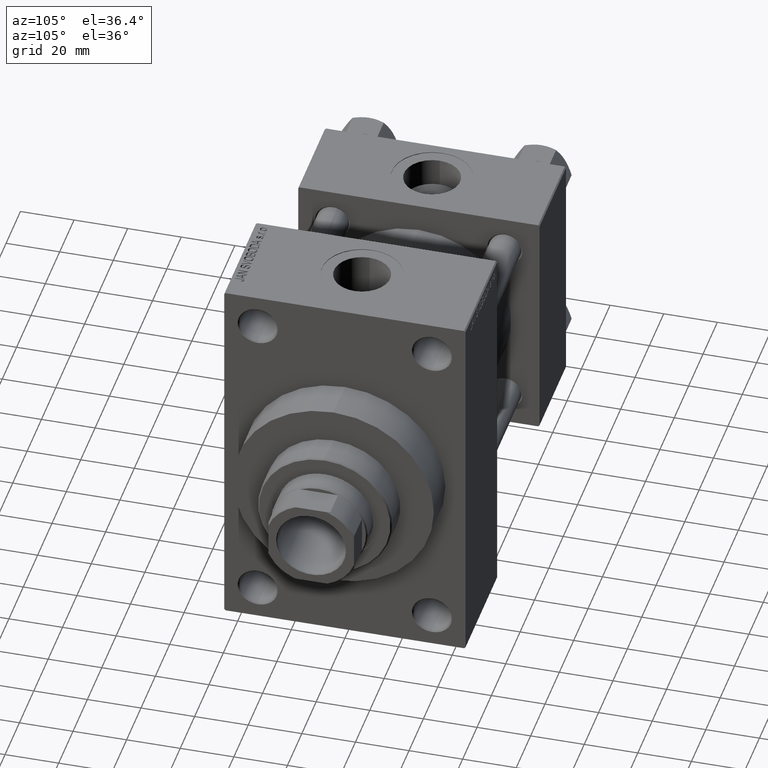
[diagram: clean part render]
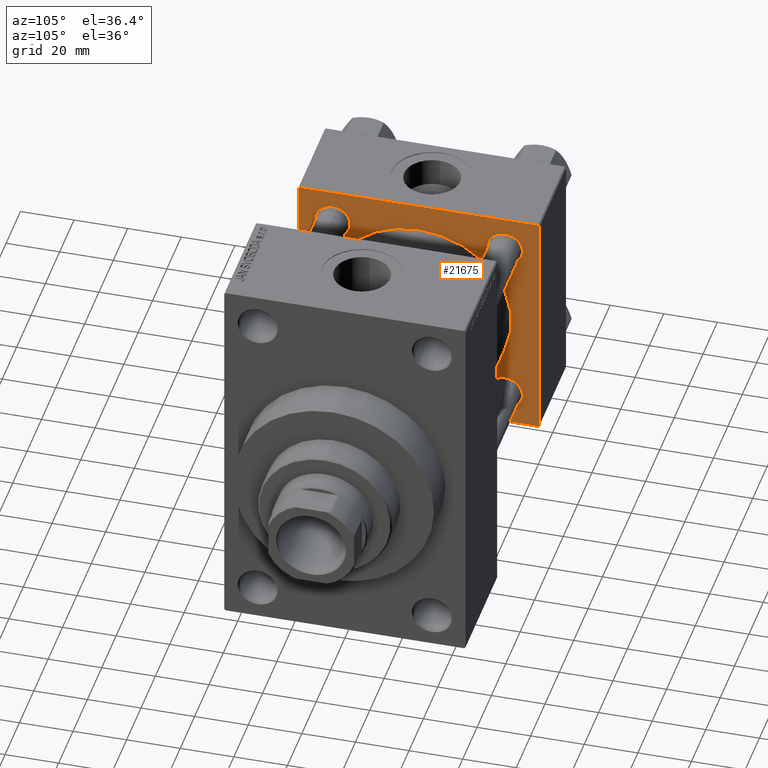
[diagram: same view with one face highlighted and labeled with its STEP entity id]
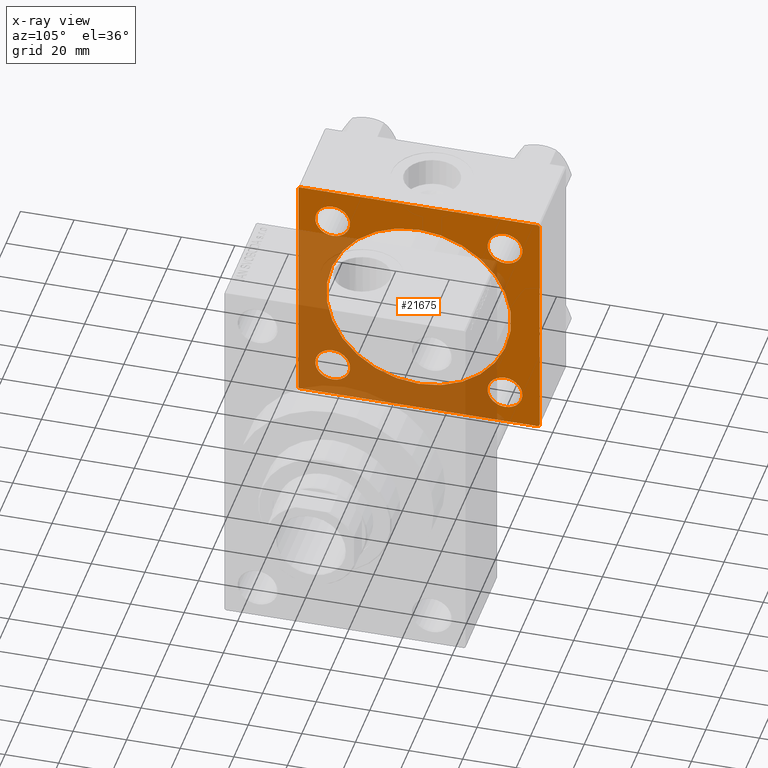
[diagram: x-ray of the same camera — body ghosted, the highlighted face saturated]
A machine part, auxiliary view. The second image highlights one B-rep face of the part: STEP entity #21675.
The next image is the same camera in x-ray: the body ghosted, the highlighted face saturated — about 46% of this face is hidden behind the body in this view.
In plain terms, the highlighted planar face has unit normal (-1, 0, 0).
Its self-contained STEP definition (entity closure, byte-faithful):
#77 = EDGE_CURVE ( 'NONE', #12973, #29130, #31905, .T. ) ;
#451 = EDGE_LOOP ( 'NONE', ( #43385, #15809 ) ) ;
#627 = LINE ( 'NONE', #18536, #29840 ) ;
#1309 = CARTESIAN_POINT ( 'NONE',  ( 37.00000000000000000, 32.14999999999999147, 25.64999999999997016 ) ) ;
#2345 = CARTESIAN_POINT ( 'NONE',  ( 37.00000000000000000, -2.602085213965210642E-15, 0.000000000000000000 ) ) ;
#2824 = CIRCLE ( 'NONE', #5840, 6.500000000000005329 ) ;
#3007 = CARTESIAN_POINT ( 'NONE',  ( 37.00000000000000000, 44.99999999999998579, 45.00000000000001421 ) ) ;
#3018 = VECTOR ( 'NONE', #22560, 1000.000000000000114 ) ;
#3119 = VERTEX_POINT ( 'NONE', #38894 ) ;
#3249 = CARTESIAN_POINT ( 'NONE',  ( 37.00000000000000000, -32.14999999999997726, -38.65000000000001990 ) ) ;
#4550 = VERTEX_POINT ( 'NONE', #30850 ) ;
#4587 = DIRECTION ( 'NONE',  ( 0.000000000000000000, -0.7071067811865474617, 0.7071067811865474617 ) ) ;
#4747 = AXIS2_PLACEMENT_3D ( 'NONE', #12404, #26971, #5233 ) ;
#5161 = VECTOR ( 'NONE', #14163, 1000.000000000000000 ) ;
#5192 = CIRCLE ( 'NONE', #5941, 6.500000000000005329 ) ;
#5233 = DIRECTION ( 'NONE',  ( 0.000000000000000000, 0.000000000000000000, 1.000000000000000000 ) ) ;
#5247 = EDGE_CURVE ( 'NONE', #34964, #16035, #20838, .T. ) ;
#5421 = AXIS2_PLACEMENT_3D ( 'NONE', #25757, #40328, #19070 ) ;
#5831 = CARTESIAN_POINT ( 'NONE',  ( 37.00000000000000000, -45.00000000000000711, 44.49999999999997158 ) ) ;
#5840 = AXIS2_PLACEMENT_3D ( 'NONE', #8627, #36874, #9096 ) ;
#5941 = AXIS2_PLACEMENT_3D ( 'NONE', #11647, #18825, #44614 ) ;
#6011 = DIRECTION ( 'NONE',  ( 0.000000000000000000, -1.000000000000000000, -1.541976423090495387E-16 ) ) ;
#6088 = CARTESIAN_POINT ( 'NONE',  ( 37.00000000000000000, 0.000000000000000000, 0.000000000000000000 ) ) ;
#6346 = CARTESIAN_POINT ( 'NONE',  ( 37.00000000000000000, -32.14999999999997726, 25.65000000000000568 ) ) ;
#6418 = EDGE_CURVE ( 'NONE', #30768, #19067, #42287, .T. ) ;
#6555 = DIRECTION ( 'NONE',  ( -1.000000000000000000, 0.000000000000000000, -0.000000000000000000 ) ) ;
#6769 = EDGE_CURVE ( 'NONE', #19089, #8957, #25457, .T. ) ;
#6790 = FACE_BOUND ( 'NONE', #16321, .T. ) ;
#7021 = LINE ( 'NONE', #11558, #3018 ) ;
#8627 = CARTESIAN_POINT ( 'NONE',  ( 37.00000000000000000, -32.14999999999997726, -32.15000000000001279 ) ) ;
#8880 = CARTESIAN_POINT ( 'NONE',  ( 37.00000000000000000, 44.49999999999998579, 45.00000000000001421 ) ) ;
#8957 = VERTEX_POINT ( 'NONE', #39503 ) ;
#9096 = DIRECTION ( 'NONE',  ( 0.000000000000000000, 0.000000000000000000, 1.000000000000000000 ) ) ;
#9487 = ORIENTED_EDGE ( 'NONE', *, *, #23410, .T. ) ;
#9906 = PLANE ( 'NONE',  #15775 ) ;
#10047 = DIRECTION ( 'NONE',  ( 0.000000000000000000, 0.000000000000000000, 1.000000000000000000 ) ) ;
#10063 = LINE ( 'NONE', #13418, #37145 ) ;
#10262 = CARTESIAN_POINT ( 'NONE',  ( 37.00000000000000000, -32.14999999999997726, 32.15000000000001279 ) ) ;
#10373 = DIRECTION ( 'NONE',  ( -0.000000000000000000, 0.000000000000000000, 1.000000000000000000 ) ) ;
#11365 = ORIENTED_EDGE ( 'NONE', *, *, #22829, .T. ) ;
#11558 = CARTESIAN_POINT ( 'NONE',  ( 37.00000000000000000, -44.49999999999998579, -45.00000000000000000 ) ) ;
#11647 = CARTESIAN_POINT ( 'NONE',  ( 37.00000000000000000, -32.14999999999997726, -32.15000000000001279 ) ) ;
#12147 = DIRECTION ( 'NONE',  ( 0.000000000000000000, 0.000000000000000000, 1.000000000000000000 ) ) ;
#12404 = CARTESIAN_POINT ( 'NONE',  ( 37.00000000000000000, 32.14999999999999147, 32.15000000000000568 ) ) ;
#12973 = VERTEX_POINT ( 'NONE', #45025 ) ;
#13179 = VERTEX_POINT ( 'NONE', #40864 ) ;
#13418 = CARTESIAN_POINT ( 'NONE',  ( 37.00000000000000000, 44.99999999999998579, 45.00000000000001421 ) ) ;
#13438 = ORIENTED_EDGE ( 'NONE', *, *, #27964, .T. ) ;
#13709 = AXIS2_PLACEMENT_3D ( 'NONE', #21704, #47236, #18589 ) ;
#13929 = CARTESIAN_POINT ( 'NONE',  ( 37.00000000000000000, 32.14999999999999147, 32.15000000000000568 ) ) ;
#14016 = AXIS2_PLACEMENT_3D ( 'NONE', #21799, #36362, #39478 ) ;
#14163 = DIRECTION ( 'NONE',  ( 0.000000000000000000, -1.000000000000000000, -1.541976423090495633E-16 ) ) ;
#14202 = FACE_OUTER_BOUND ( 'NONE', #45058, .T. ) ;
#14568 = CARTESIAN_POINT ( 'NONE',  ( 37.00000000000000000, 32.14999999999999147, 38.65000000000004121 ) ) ;
#15371 = DIRECTION ( 'NONE',  ( 0.000000000000000000, 7.709882115452476934E-17, -1.000000000000000000 ) ) ;
#15464 = CARTESIAN_POINT ( 'NONE',  ( 37.00000000000000000, 44.99999999999998579, -44.49999999999995737 ) ) ;
#15775 = AXIS2_PLACEMENT_3D ( 'NONE', #6088, #6555, #10373 ) ;
#15809 = ORIENTED_EDGE ( 'NONE', *, *, #40453, .T. ) ;
#15909 = AXIS2_PLACEMENT_3D ( 'NONE', #10262, #21255, #35814 ) ;
#15913 = CARTESIAN_POINT ( 'NONE',  ( 37.00000000000000000, -44.49999999999995737, -45.00000000000000000 ) ) ;
#16035 = VERTEX_POINT ( 'NONE', #1309 ) ;
#16321 = EDGE_LOOP ( 'NONE', ( #45764, #13438 ) ) ;
#16882 = CARTESIAN_POINT ( 'NONE',  ( 37.00000000000000000, 44.49999999999998579, 45.00000000000001421 ) ) ;
#17461 = CARTESIAN_POINT ( 'NONE',  ( 37.00000000000000000, -32.14999999999997726, 32.15000000000001279 ) ) ;
#17597 = EDGE_CURVE ( 'NONE', #28248, #29314, #2824, .T. ) ;
#17770 = LINE ( 'NONE', #5831, #23489 ) ;
#17903 = ORIENTED_EDGE ( 'NONE', *, *, #43196, .T. ) ;
#18536 = CARTESIAN_POINT ( 'NONE',  ( 37.00000000000000000, 44.99999999999998579, -44.49999999999998579 ) ) ;
#18589 = DIRECTION ( 'NONE',  ( 0.000000000000000000, 0.000000000000000000, 1.000000000000000000 ) ) ;
#18790 = ORIENTED_EDGE ( 'NONE', *, *, #5247, .T. ) ;
#18825 = DIRECTION ( 'NONE',  ( -1.000000000000000000, 0.000000000000000000, -0.000000000000000000 ) ) ;
#19067 = VERTEX_POINT ( 'NONE', #42527 ) ;
#19070 = DIRECTION ( 'NONE',  ( 0.000000000000000000, 0.000000000000000000, 1.000000000000000000 ) ) ;
#19089 = VERTEX_POINT ( 'NONE', #42760 ) ;
#20838 = CIRCLE ( 'NONE', #26926, 6.500000000000033751 ) ;
#21255 = DIRECTION ( 'NONE',  ( -1.000000000000000000, 0.000000000000000000, -0.000000000000000000 ) ) ;
#21588 = VERTEX_POINT ( 'NONE', #15913 ) ;
#21675 = ADVANCED_FACE ( 'NONE', ( #42639, #25418, #6790, #28539, #35226, #14202 ), #9906, .F. ) ;
#21704 = CARTESIAN_POINT ( 'NONE',  ( 37.00000000000000000, -2.602085213965210642E-15, 0.000000000000000000 ) ) ;
#21799 = CARTESIAN_POINT ( 'NONE',  ( 37.00000000000000000, 32.14999999999999147, -32.15000000000000568 ) ) ;
#22560 = DIRECTION ( 'NONE',  ( 0.000000000000000000, 0.7071067811865474617, -0.7071067811865474617 ) ) ;
#22829 = EDGE_CURVE ( 'NONE', #26073, #4550, #10063, .T. ) ;
#23169 = VECTOR ( 'NONE', #15371, 1000.000000000000000 ) ;
#23410 = EDGE_CURVE ( 'NONE', #4550, #30768, #17770, .T. ) ;
#23489 = VECTOR ( 'NONE', #46198, 1000.000000000000114 ) ;
#23655 = CIRCLE ( 'NONE', #13709, 34.50000000000000000 ) ;
#24460 = DIRECTION ( 'NONE',  ( -1.000000000000000000, 0.000000000000000000, -0.000000000000000000 ) ) ;
#24693 = DIRECTION ( 'NONE',  ( 0.000000000000000000, 0.000000000000000000, 1.000000000000000000 ) ) ;
#25168 = VERTEX_POINT ( 'NONE', #6346 ) ;
#25418 = FACE_BOUND ( 'NONE', #451, .T. ) ;
#25457 = CIRCLE ( 'NONE', #31569, 34.50000000000000000 ) ;
#25757 = CARTESIAN_POINT ( 'NONE',  ( 37.00000000000000000, 32.14999999999999147, -32.15000000000000568 ) ) ;
#25857 = LINE ( 'NONE', #46644, #5161 ) ;
#26024 = VERTEX_POINT ( 'NONE', #38617 ) ;
#26073 = VERTEX_POINT ( 'NONE', #16882 ) ;
#26926 = AXIS2_PLACEMENT_3D ( 'NONE', #13929, #24460, #24693 ) ;
#26971 = DIRECTION ( 'NONE',  ( -1.000000000000000000, 0.000000000000000000, -0.000000000000000000 ) ) ;
#27124 = ORIENTED_EDGE ( 'NONE', *, *, #40603, .T. ) ;
#27139 = EDGE_LOOP ( 'NONE', ( #17903, #18790 ) ) ;
#27437 = ORIENTED_EDGE ( 'NONE', *, *, #6769, .F. ) ;
#27788 = EDGE_CURVE ( 'NONE', #31224, #3119, #35781, .T. ) ;
#27945 = CARTESIAN_POINT ( 'NONE',  ( 37.00000000000000000, -45.00000000000000711, 45.00000000000000000 ) ) ;
#27964 = EDGE_CURVE ( 'NONE', #13179, #25168, #34617, .T. ) ;
#28248 = VERTEX_POINT ( 'NONE', #38668 ) ;
#28320 = DIRECTION ( 'NONE',  ( 0.000000000000000000, 0.000000000000000000, -1.000000000000000000 ) ) ;
#28535 = EDGE_CURVE ( 'NONE', #26024, #21588, #25857, .T. ) ;
#28539 = FACE_BOUND ( 'NONE', #27139, .T. ) ;
#29130 = VERTEX_POINT ( 'NONE', #15464 ) ;
#29314 = VERTEX_POINT ( 'NONE', #3249 ) ;
#29328 = ORIENTED_EDGE ( 'NONE', *, *, #17597, .T. ) ;
#29708 = EDGE_LOOP ( 'NONE', ( #30982, #29328 ) ) ;
#29840 = VECTOR ( 'NONE', #33106, 1000.000000000000114 ) ;
#29981 = ORIENTED_EDGE ( 'NONE', *, *, #77, .F. ) ;
#30099 = EDGE_CURVE ( 'NONE', #29314, #28248, #5192, .T. ) ;
#30584 = CARTESIAN_POINT ( 'NONE',  ( 37.00000000000000000, -45.00000000000000711, 44.49999999999997158 ) ) ;
#30768 = VERTEX_POINT ( 'NONE', #30584 ) ;
#30850 = CARTESIAN_POINT ( 'NONE',  ( 37.00000000000000000, -44.49999999999995737, 45.00000000000000000 ) ) ;
#30904 = EDGE_CURVE ( 'NONE', #25168, #13179, #36493, .T. ) ;
#30982 = ORIENTED_EDGE ( 'NONE', *, *, #30099, .T. ) ;
#31224 = VERTEX_POINT ( 'NONE', #34704 ) ;
#31569 = AXIS2_PLACEMENT_3D ( 'NONE', #2345, #44871, #12147 ) ;
#31905 = LINE ( 'NONE', #3007, #37473 ) ;
#33002 = ORIENTED_EDGE ( 'NONE', *, *, #6418, .T. ) ;
#33106 = DIRECTION ( 'NONE',  ( -0.000000000000000000, 0.7071067811865474617, 0.7071067811865474617 ) ) ;
#33279 = EDGE_CURVE ( 'NONE', #19067, #21588, #7021, .T. ) ;
#34617 = CIRCLE ( 'NONE', #40710, 6.500000000000005329 ) ;
#34704 = CARTESIAN_POINT ( 'NONE',  ( 37.00000000000000000, 32.14999999999999147, -38.65000000000004121 ) ) ;
#34964 = VERTEX_POINT ( 'NONE', #14568 ) ;
#35226 = FACE_BOUND ( 'NONE', #41738, .T. ) ;
#35766 = EDGE_CURVE ( 'NONE', #12973, #26073, #41136, .T. ) ;
#35781 = CIRCLE ( 'NONE', #14016, 6.500000000000033751 ) ;
#35814 = DIRECTION ( 'NONE',  ( 0.000000000000000000, 0.000000000000000000, 1.000000000000000000 ) ) ;
#35836 = DIRECTION ( 'NONE',  ( -1.000000000000000000, 0.000000000000000000, -0.000000000000000000 ) ) ;
#36362 = DIRECTION ( 'NONE',  ( -1.000000000000000000, 0.000000000000000000, -0.000000000000000000 ) ) ;
#36493 = CIRCLE ( 'NONE', #15909, 6.500000000000005329 ) ;
#36874 = DIRECTION ( 'NONE',  ( -1.000000000000000000, 0.000000000000000000, -0.000000000000000000 ) ) ;
#37145 = VECTOR ( 'NONE', #6011, 1000.000000000000000 ) ;
#37313 = VECTOR ( 'NONE', #4587, 1000.000000000000114 ) ;
#37388 = EDGE_CURVE ( 'NONE', #8957, #19089, #23655, .T. ) ;
#37473 = VECTOR ( 'NONE', #28320, 1000.000000000000000 ) ;
#38617 = CARTESIAN_POINT ( 'NONE',  ( 37.00000000000000000, 44.49999999999998579, -44.99999999999998579 ) ) ;
#38668 = CARTESIAN_POINT ( 'NONE',  ( 37.00000000000000000, -32.14999999999997726, -25.65000000000000568 ) ) ;
#38894 = CARTESIAN_POINT ( 'NONE',  ( 37.00000000000000000, 32.14999999999999147, -25.64999999999997016 ) ) ;
#38906 = ORIENTED_EDGE ( 'NONE', *, *, #28535, .F. ) ;
#39478 = DIRECTION ( 'NONE',  ( 0.000000000000000000, 0.000000000000000000, 1.000000000000000000 ) ) ;
#39503 = CARTESIAN_POINT ( 'NONE',  ( 37.00000000000000000, -2.602085213965210642E-15, 34.50000000000000000 ) ) ;
#40094 = ORIENTED_EDGE ( 'NONE', *, *, #33279, .T. ) ;
#40328 = DIRECTION ( 'NONE',  ( -1.000000000000000000, 0.000000000000000000, -0.000000000000000000 ) ) ;
#40453 = EDGE_CURVE ( 'NONE', #3119, #31224, #42054, .T. ) ;
#40603 = EDGE_CURVE ( 'NONE', #26024, #29130, #627, .T. ) ;
#40710 = AXIS2_PLACEMENT_3D ( 'NONE', #17461, #35836, #10047 ) ;
#40864 = CARTESIAN_POINT ( 'NONE',  ( 37.00000000000000000, -32.14999999999997726, 38.65000000000001990 ) ) ;
#41136 = LINE ( 'NONE', #8880, #37313 ) ;
#41738 = EDGE_LOOP ( 'NONE', ( #41834, #27437 ) ) ;
#41834 = ORIENTED_EDGE ( 'NONE', *, *, #37388, .F. ) ;
#42054 = CIRCLE ( 'NONE', #5421, 6.500000000000033751 ) ;
#42287 = LINE ( 'NONE', #27945, #23169 ) ;
#42527 = CARTESIAN_POINT ( 'NONE',  ( 37.00000000000000000, -45.00000000000000000, -44.49999999999995737 ) ) ;
#42639 = FACE_BOUND ( 'NONE', #29708, .T. ) ;
#42760 = CARTESIAN_POINT ( 'NONE',  ( 37.00000000000000000, 1.622946243093158675E-15, -34.50000000000000000 ) ) ;
#43170 = ORIENTED_EDGE ( 'NONE', *, *, #35766, .T. ) ;
#43196 = EDGE_CURVE ( 'NONE', #16035, #34964, #44437, .T. ) ;
#43385 = ORIENTED_EDGE ( 'NONE', *, *, #27788, .T. ) ;
#44437 = CIRCLE ( 'NONE', #4747, 6.500000000000033751 ) ;
#44614 = DIRECTION ( 'NONE',  ( 0.000000000000000000, 0.000000000000000000, 1.000000000000000000 ) ) ;
#44871 = DIRECTION ( 'NONE',  ( 1.000000000000000000, -0.000000000000000000, 0.000000000000000000 ) ) ;
#45025 = CARTESIAN_POINT ( 'NONE',  ( 37.00000000000000000, 44.99999999999998579, 44.50000000000001421 ) ) ;
#45058 = EDGE_LOOP ( 'NONE', ( #38906, #27124, #29981, #43170, #11365, #9487, #33002, #40094 ) ) ;
#45764 = ORIENTED_EDGE ( 'NONE', *, *, #30904, .T. ) ;
#46198 = DIRECTION ( 'NONE',  ( -0.000000000000000000, -0.7071067811865425767, -0.7071067811865524577 ) ) ;
#46644 = CARTESIAN_POINT ( 'NONE',  ( 37.00000000000000000, 44.99999999999998579, -44.99999999999998579 ) ) ;
#47236 = DIRECTION ( 'NONE',  ( 1.000000000000000000, -0.000000000000000000, 0.000000000000000000 ) ) ;